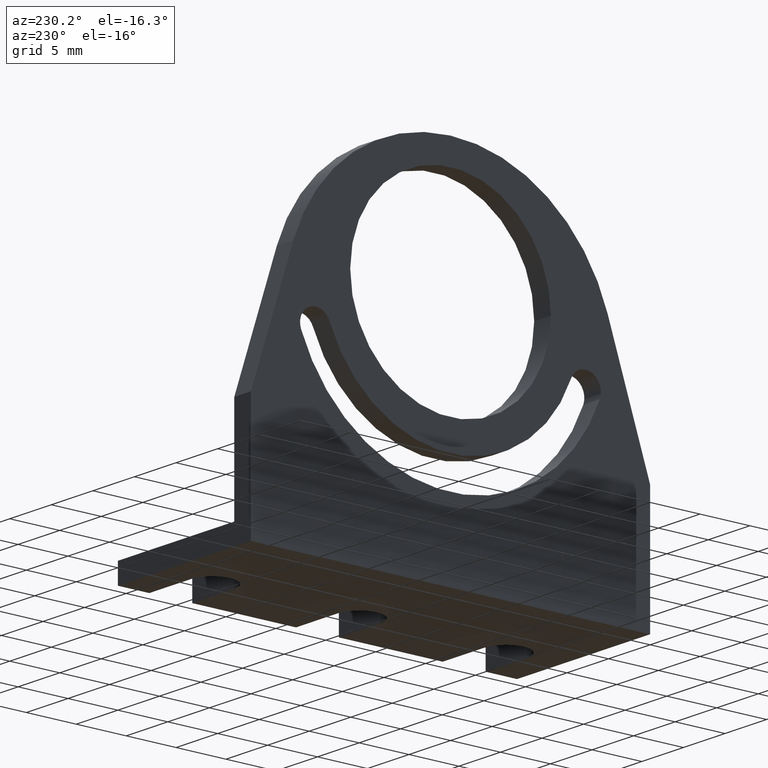
[diagram: clean part render]
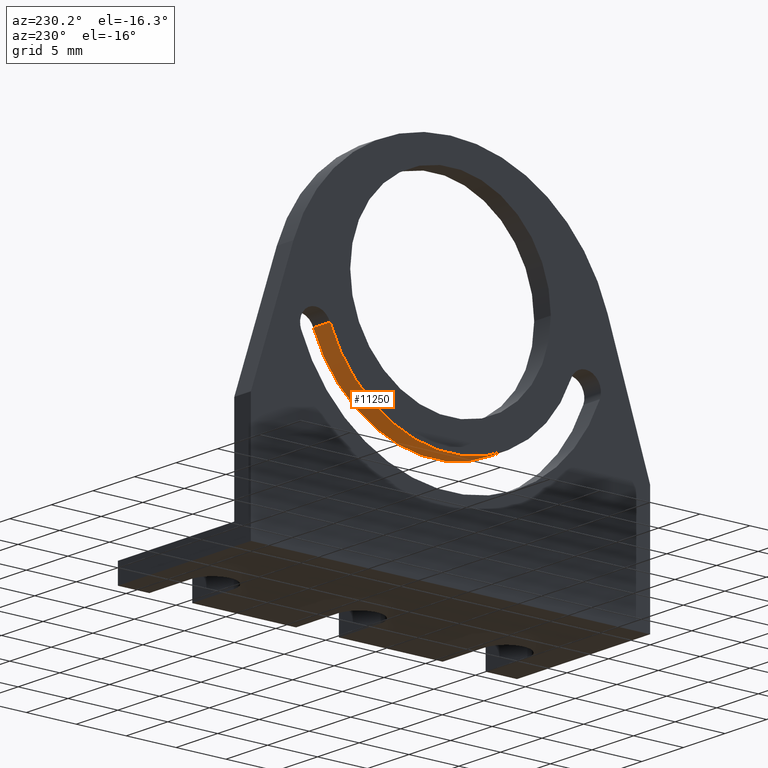
[diagram: same view with one face highlighted and labeled with its STEP entity id]
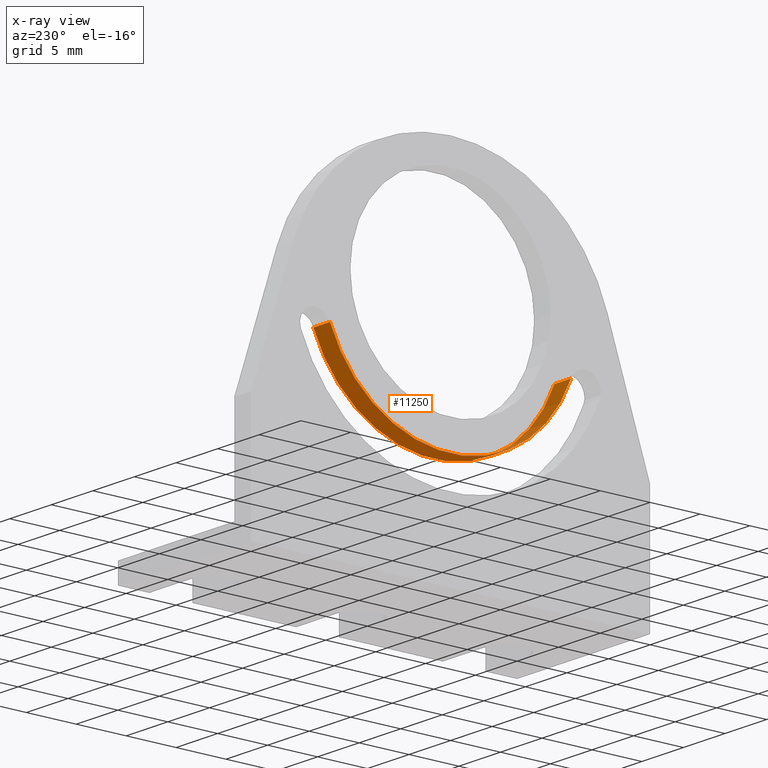
[diagram: x-ray of the same camera — body ghosted, the highlighted face saturated]
A machine part, auxiliary view. The second image highlights one B-rep face of the part: STEP entity #11250.
The next image is the same camera in x-ray: the body ghosted, the highlighted face saturated — about 0% of this face is hidden behind the body in this view.
In plain terms, the highlighted cylindrical surface (partial cylindrical patch) has radius 12.95 mm, axis along (-1, 0, 0).
Its self-contained STEP definition (entity closure, byte-faithful):
#5950=CARTESIAN_POINT('',(-12.0787803432728,17.0303570351721,0.));
#5960=VERTEX_POINT('',#5950);
#5990=CARTESIAN_POINT('',(0.,21.7,0.));
#6000=DIRECTION('',(0.,0.,-1.));
#6010=DIRECTION('',(0.932724350831885,-0.360590190334179,0.));
#6020=AXIS2_PLACEMENT_3D('',#5990,#6000,#6010);
#6030=CIRCLE('',#6020,12.95);
#6040=CARTESIAN_POINT('',(12.0787803432728,17.0303570351721,0.));
#6050=VERTEX_POINT('',#6040);
#6060=EDGE_CURVE('',#6050,#5960,#6030,.T.);
#7600=CARTESIAN_POINT('',(-12.0787803432728,17.0303570351721,2.));
#7610=VERTEX_POINT('',#7600);
#7700=CARTESIAN_POINT('',(12.0787803432727,17.0303570351719,2.));
#7710=VERTEX_POINT('',#7700);
#7740=CARTESIAN_POINT('',(0.,21.7,2.));
#7750=DIRECTION('',(0.,0.,1.));
#7760=DIRECTION('',(-0.932724350831883,-0.360590190334183,0.));
#7770=AXIS2_PLACEMENT_3D('',#7740,#7750,#7760);
#7780=CIRCLE('',#7770,12.95);
#7790=EDGE_CURVE('',#7610,#7710,#7780,.T.);
#10500=CARTESIAN_POINT('',(-12.0787803432727,17.0303570351719,0.));
#10510=DIRECTION('',(0.,0.,1.));
#10520=VECTOR('',#10510,1.);
#10530=LINE('',#10500,#10520);
#10540=EDGE_CURVE('',#5960,#7610,#10530,.T.);
#10740=CARTESIAN_POINT('',(12.0787803432727,17.0303570351719,2.));
#10750=DIRECTION('',(0.,0.,-1.));
#10760=VECTOR('',#10750,1.);
#10770=LINE('',#10740,#10760);
#10780=EDGE_CURVE('',#7710,#6050,#10770,.T.);
#11140=CARTESIAN_POINT('',(0.,21.7,1.));
#11150=DIRECTION('',(0.,0.,-1.));
#11160=DIRECTION('',(-1.,0.,0.));
#11170=AXIS2_PLACEMENT_3D('',#11140,#11150,#11160);
#11180=CYLINDRICAL_SURFACE('',#11170,12.95);
#11190=ORIENTED_EDGE('',*,*,#10780,.F.);
#11200=ORIENTED_EDGE('',*,*,#6060,.F.);
#11210=ORIENTED_EDGE('',*,*,#10540,.F.);
#11220=ORIENTED_EDGE('',*,*,#7790,.F.);
#11230=EDGE_LOOP('',(#11220,#11210,#11200,#11190));
#11240=FACE_OUTER_BOUND('',#11230,.T.);
#11250=ADVANCED_FACE('',(#11240),#11180,.T.);